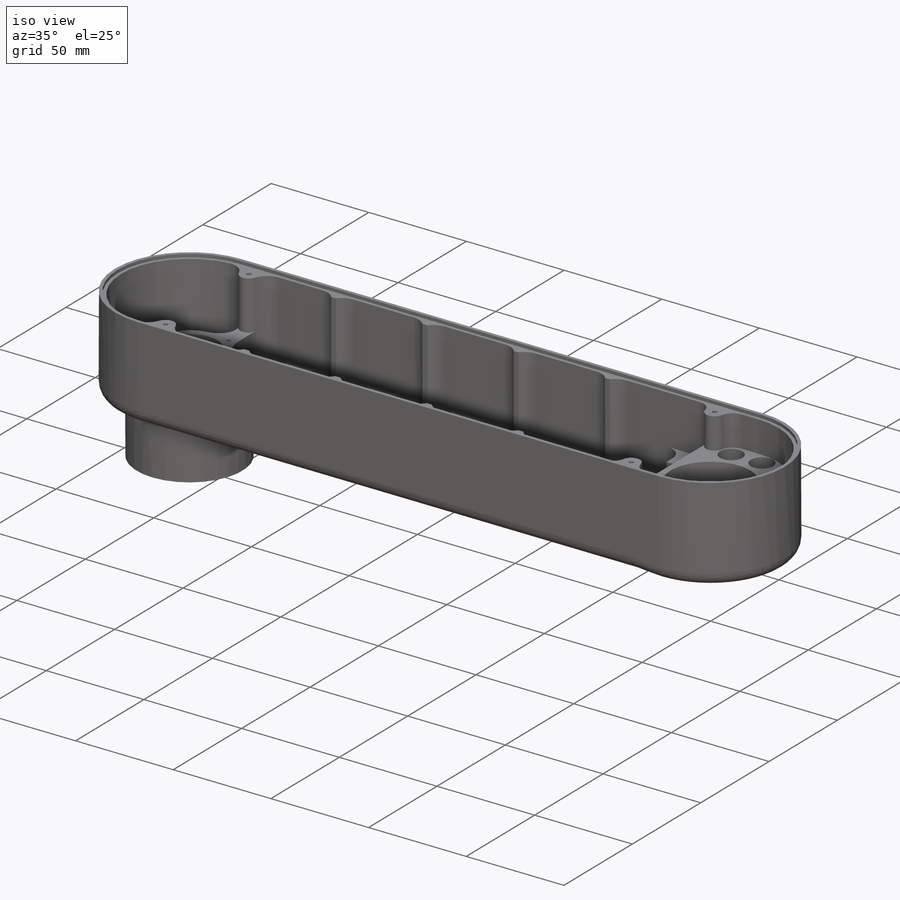
[diagram: iso view]
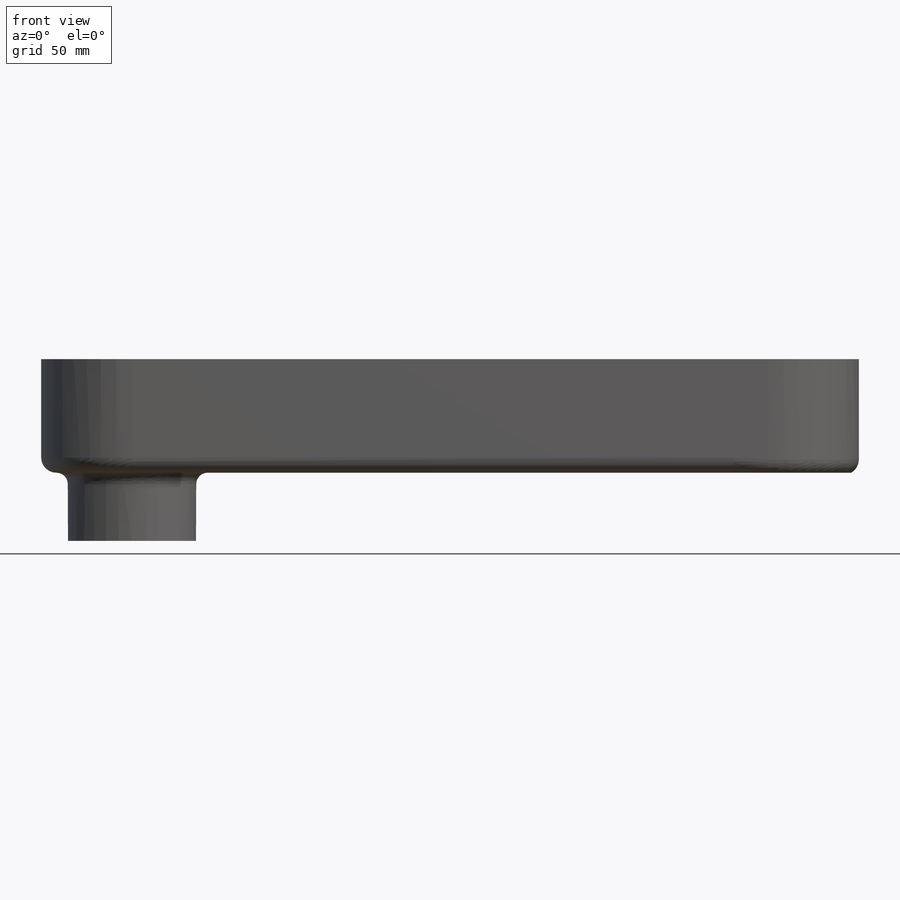
[diagram: front view]
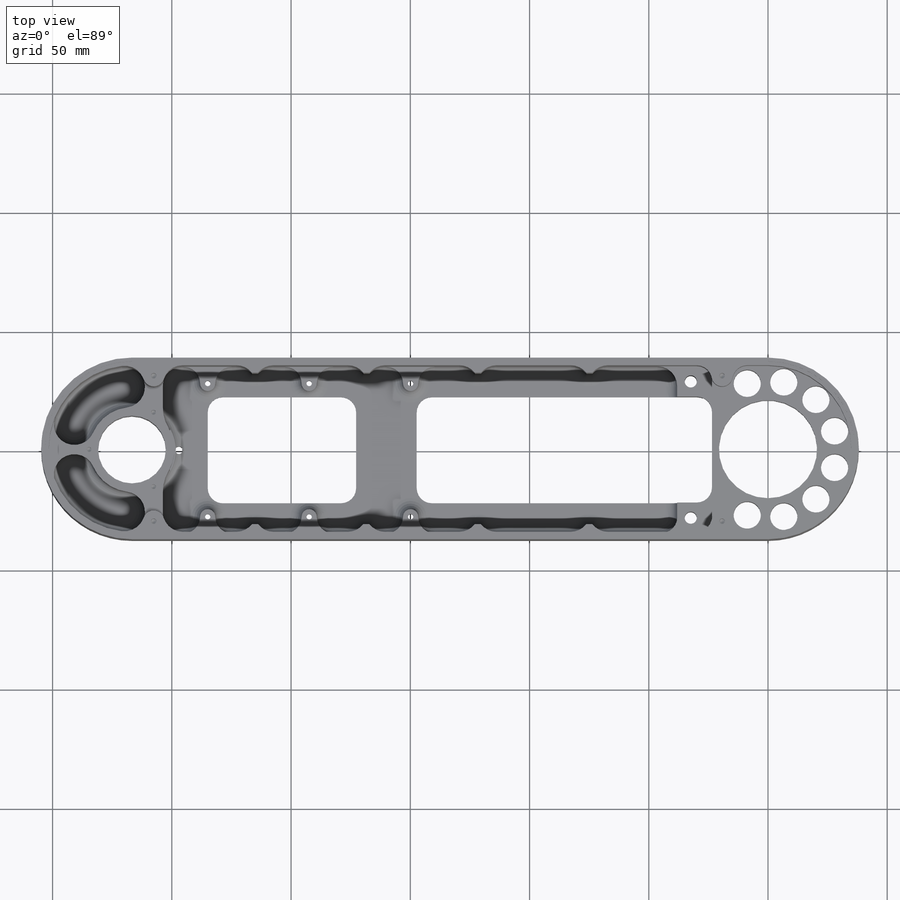
[diagram: top view]
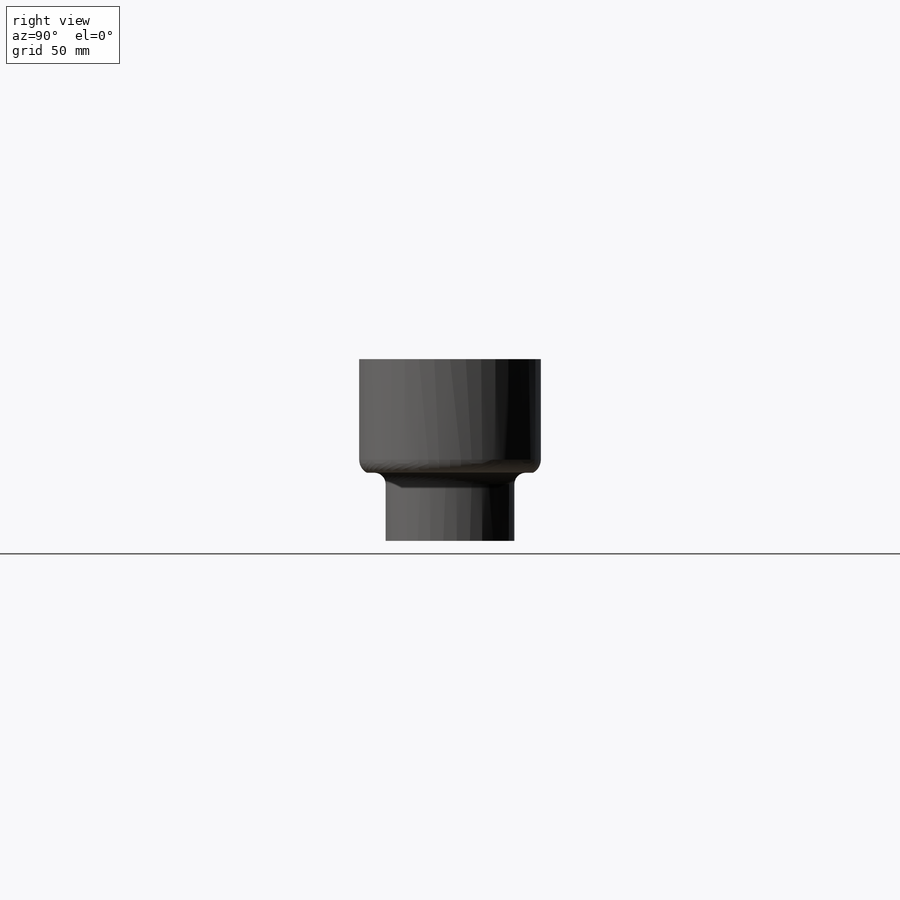
[diagram: right view]
SOLIDWORKS PART (.sldprt)
format: sldprt  version: not decoded by parser v0  size: 4,188,160 bytes
history: native  units: mm
features: sketch x47, cut_extrude x15, hole x11, extrude x8, thread x7, plane x4, fillet x4, mirror x3, pattern_circular x3, pattern_linear x3, cut_revolve x2, delete_body x2, material x1 + 1 further entry (+8 scaffold rows collapsed)
feature tree (119):
  scaffold x8  (default folders/planes/origin — collapsed)
  material  "Delrin 2700 NC010, Low Viscosity Acetal Copolymer (SS)"
  plane  "Front-Back Midplane"
  plane  "Horizontal Midplane"
  plane  "Left-Right Midplane"
  plane  "Plane1"  Offset=266.7mm
  "Hand"
  sketch  "Sketch1"  dims[D1=76.2mm D2=304.8mm]
  extrude  "Boss-Extrude1"  Depth=44.45mm
  sketch  "Sketch2"  dims[c1.D2=15.875mm c1.D3=53.975mm c1.D1=304.8mm c2.D1=15.0deg]
  cut_extrude  "Cut-Extrude1"  Depth=3.175mm
  sketch  "Sketch3"  dims[c1.D1=21.8059mm c1.D2=14.1986mm c1.D3=23.9141mm c1.D4=31.75mm c1.D5=1.4224mm c1.D6=15.2019mm c1.D7=15.24mm c1.D8=7.9375mm c1.D9=~8.73252mm c2.D7=17.78mm c2.D9=~11.22426mm c2.D1=21.2344mm c2.D10=21.3106mm c2.D11=3.1496mm c2.D12=0.99mm c2.D13=25.4508mm c2.D14=26.125mm c2.D15=25.4508mm c3.D9=6.2484mm]
  cut_revolve  "Cut-Revolve1"  Angle=360deg
  sketch  "Sketch4"  dims[c1.D1=20.6375mm c1.D2=21.9075mm c1.D3=1.7272mm c1.D4=14.9479mm c1.D5=5.08mm c2.D1=20.574mm c2.D6=10.9601mm c2.D7=3.175mm c2.D8=1.905mm c2.D9=6.35mm c3.D8=22.225mm c3.D9=3.175mm c3.D10=34.925mm c3.D11=~29.573086mm c3.D5=10.9601mm c3.D4=~17.60982mm c4.D5=10.5918mm c4.D6=12.065mm c5.D5=~30.18282mm c5.D8=7.7851mm]
  cut_revolve  "Cut-Revolve2"  Angle=360deg
  fillet  "Fillet1"  Radius=15.875mm
  sketch  "Sketch7"  dims[c1.D2=57.15mm c1.D3=9.525mm c1.D1=4.7625mm c2.D2=3.175mm]
  cut_extrude  "Cut-Extrude2"  Depth=3.175mm
  sketch  "Sketch10"  dims[c1.D3=9.525mm c1.D2=23.114mm c1.D4=9.525mm c2.D3=6.35mm c2.D4=~22.321944mm c2.D5=~48.054851mm c2.D2=23.495mm c2.D1=3.175mm c3.D2=9.525mm]
  cut_extrude  "Cut-Extrude3"  [1 undecoded]
  sketch  "Sketch37"
  cut_extrude  "Cut-Extrude10"  [1 undecoded]
  sketch  "Sketch11"  dims[c1.D3=6.35mm c1.D4=35.56mm c1.D6=17.145mm c1.D1=8.255mm c1.D9=6.35mm c1.D10=8.255mm c2.D1=139.7mm c2.D2=38.1mm c2.D5=~0.79375mm c2.D7=38.1mm c3.D2=44.45mm c3.D8=1.5875mm c3.D10=3.175mm c3.D5=20.955mm c4.D8=~30.342758mm c5.D8=120.0deg c5.D11=18.0086mm c5.D12=3.175mm]
  cut_extrude  "Cut-Extrude4"  Depth=3.175mm
  sketch  "Sketch12"  dims[D1=1.5875mm]
  cut_extrude  "Cut-Extrude5"  Depth=1.5875mm
  sketch  "Sketch13"  dims[D1=0.127mm]
  extrude  "Boss-Extrude2"  Depth=0.79375mm
  hole  "3/32 (0.09375) Diameter Hole1"  Diameter=2.38125mm Depth=10.16mm
  sketch  "Sketch15"  dims[D1=16.51mm]
  sketch  "Sketch14"  dims[hole-wizard template sketch: 47 standard entries collapsed; hole parameters kept: c15.Hole Depth=10.16mm c15.D3=~14.816244mm c15.Drill Angle=118.0deg]
  hole  "1/4-20 Tapped Hole1"  [1 undecoded]
  sketch  "Sketch17"  dims[D1=32.385mm D2=28.575mm D3=28.575mm]
  thread  "Hole Thread1"  Diameter=6.35mm  [1 undecoded]
  thread  "Hole Thread2"  Diameter=6.35mm  [1 undecoded]
  sketch  "Sketch16"  dims[hole-wizard template sketch: 60 standard entries collapsed; hole parameters kept: c18.Thru Tap Drill Depth=49.53mm]
  sketch  "Sketch19"  dims[D1=5.3975mm D2=9.525mm D3=5.08mm]
  extrude  "Boss-Extrude3"  [1 undecoded]
  hole  "#4-40 Tapped Hole2"  Diameter=2.2606mm Depth=8.89mm
  sketch  "Sketch21"
  sketch  "Sketch20"  dims[hole-wizard template sketch: 50 standard entries collapsed; hole parameters above]
  thread  "Hole Thread11"  Diameter=0mm  [1 undecoded]
  thread  "Hole Thread14"  Diameter=0mm  [1 undecoded]
  mirror  "Mirror1"
  hole  "#4 Clearance Hole1"  Diameter=3.2639mm Depth=9.525mm
  sketch  "Sketch23"
  sketch  "Sketch22"  dims[hole-wizard template sketch: 47 standard entries collapsed; hole parameters kept: c15.Hole Depth=9.525mm c15.D3=~14.816244mm c15.Drill Angle=118.0deg]
  sketch  "Sketch24"  dims[D1=~2.38125mm]
  cut_extrude  "Cut-Extrude7"  Depth=4.7625mm
  hole  "#4-40 Tapped Hole3"  Diameter=2.2606mm Depth=7.5946mm
  sketch  "Sketch27"  dims[D1=60.325mm D2=15.875mm]
  sketch  "Sketch26"  dims[hole-wizard template sketch: 50 standard entries collapsed; hole parameters above]
  sketch  "Sketch28"  dims[D1=0.127mm D2=0.254mm]
  extrude  "Boss-Extrude5"  Depth=1.5875mm
  hole  "#4 Clearance Hole2"  Diameter=3.2639mm Depth=73.025mm
  sketch  "Sketch30"
  sketch  "Sketch29"  dims[hole-wizard template sketch: 60 standard entries collapsed; hole parameters kept: c18.Thru Hole Depth=73.025mm]
  hole  "#3-48 Tapped Hole1"  Diameter=1.9939mm Depth=6.604mm
  sketch  "Sketch32"  dims[D1=18.0mm]
  sketch  "Sketch31"  dims[hole-wizard template sketch: 47 standard entries collapsed; hole parameters kept: c15.Tap Drill Depth=6.604mm c15.D3=~14.816244mm c15.Drill Angle=118.0deg]
  thread  "Hole Thread15"  Diameter=5.0292mm  [1 undecoded]
  pattern_circular  "CirPattern3"  Count=3 Angle=360deg
  hole  "1/4 (0.25) Diameter Hole1"  Diameter=6.35mm Depth=75.40625mm
  sketch  "Sketch34"
  sketch  "Sketch33"  dims[hole-wizard template sketch: 60 standard entries collapsed; hole parameters kept: c18.Thru Hole Depth=~75.40625mm]
  sketch  "Sketch35"  dims[D1=38.1mm D3=~42.371828mm D2=38.1mm]
  cut_extrude  "Cut-Extrude8"  Depth=6.35mm
  sketch  "Sketch36"  dims[D2=6.35mm D1=147.32mm]
  cut_extrude  "Cut-Extrude9"  [1 undecoded]
  sketch  "Sketch51"  dims[D1=6.35mm D2=31.75mm D3=27.94mm]
  extrude  "Boss-Extrude8"  Depth=4.7625mm
  hole  "#4-40 Tapped Hole4"  Diameter=2.2606mm Depth=47.625mm
  sketch  "Sketch50"  dims[D1=31.75mm D2=27.94mm]
  sketch  "Sketch49"  dims[hole-wizard template sketch: 60 standard entries collapsed; hole parameters kept: c18.Thru Tap Drill Depth=47.625mm]
  thread  "Hole Thread13"  Diameter=2.8448mm  [1 undecoded]
  pattern_linear  "LPattern1"  Count1=3 Count2=1 Spacing1=42.545mm Spacing2=55.88mm
  mirror  "Mirror4"
  pattern_linear  "LPattern2"  Count1=3 Count2=2 Spacing1=42.545mm Spacing2=55.88mm
  delete_body  "Body-Delete1"
  delete_body  "Body-Delete2"
  sketch  "Sketch39"
  cut_extrude  "Cut-Extrude12"  [1 undecoded]
  sketch  "Sketch40"
  extrude  "Boss-Extrude6"  [1 undecoded]
  sketch  "Sketch41"
  cut_extrude  "Cut-Extrude13"  [1 undecoded]
  hole  "1/4-20 Tapped Hole2"  Diameter=5.1054mm Depth=21.59mm
  sketch  "Sketch43"  dims[D1=22.86mm]
  sketch  "Sketch42"  dims[hole-wizard template sketch: 47 standard entries collapsed; hole parameters kept: c15.Tap Drill Depth=21.59mm c15.D3=~14.816244mm c15.Drill Angle=118.0deg]
  thread  "Hole Thread10"  Diameter=17.78mm  [1 undecoded]
  pattern_circular  "CirPattern1"  Count=3 Angle=120deg
  sketch  "Sketch44"  dims[D1=4.7625mm D2=0.635mm]
  cut_extrude  "Cut-Extrude14"  [1 undecoded]
  sketch  "Sketch45"  dims[c1.D1=11.43mm c1.D2=28.956mm c1.D3=28.575mm c2.D3=72.5deg]
  cut_extrude  "Cut-Extrude15"  [1 undecoded]
  pattern_circular  "CirPattern2"  Count=8 Angle=215deg
  sketch  "Sketch56"  dims[c1.D5=8.255mm c1.D4=0.127mm c1.D1=0.635mm c1.D2=3.175mm c1.D3=69.85mm c2.D4=50.8mm c2.D1=2.54mm c2.D2=3.175mm c2.D3=74.93mm]
  extrude  "Boss-Extrude9"  [1 undecoded]
  mirror  "Mirror5"
  pattern_linear  "LPattern3"  Count1=4 Count2=1 Spacing1=46.736mm Spacing2=2.54mm
  fillet  "Fillet2"  Radius=4.7625mm
  sketch  "Sketch47"
  extrude  "Boss-Extrude7"  Depth=2.24028mm
  sketch  "Sketch38"  dims[c1.D1=6.35mm c1.D2=~77.004562mm c1.D3=6.35mm c2.D2=6.35mm c2.D3=50.8mm c2.D4=~64.491364mm c2.D1=44.45mm c3.D2=25.4mm c3.D4=31.75mm]
  cut_extrude  "Cut-Extrude11"  [1 undecoded]
  fillet  "Fillet3"  Radius=6.35mm
  fillet  "Fillet4"  Radius=4.7625mm
  hole  "1/8 (0.125) Diameter Hole1"  Diameter=3.175mm Depth=10.16mm
  sketch  "Sketch54"  dims[D1=1.5875mm]
  sketch  "Sketch53"  dims[hole-wizard template sketch: 47 standard entries collapsed; hole parameters kept: c15.Hole Depth=10.16mm c15.D3=~14.816244mm c15.Drill Angle=118.0deg]
  sketch  "Sketch55"  dims[D1=25.4mm D2=25.4mm]
  cut_extrude  "Cut-Extrude16"  Depth=3.175mm
decode coverage: 79 of 105 modeling features carry decoded parameters; 1 rows unclassified (native names shown)
note: ~ marks probable driven/reference dimensions
note: 19 parameter values undecoded
summary: no parameter record found for 12 features; Diameter pulled from absorbed wizard sketch
note: suppression state not decoded; provenance and decode notes live in map.json
